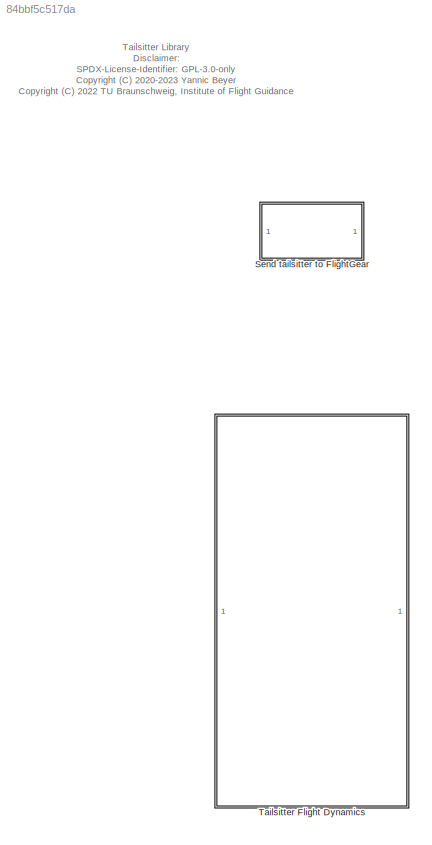
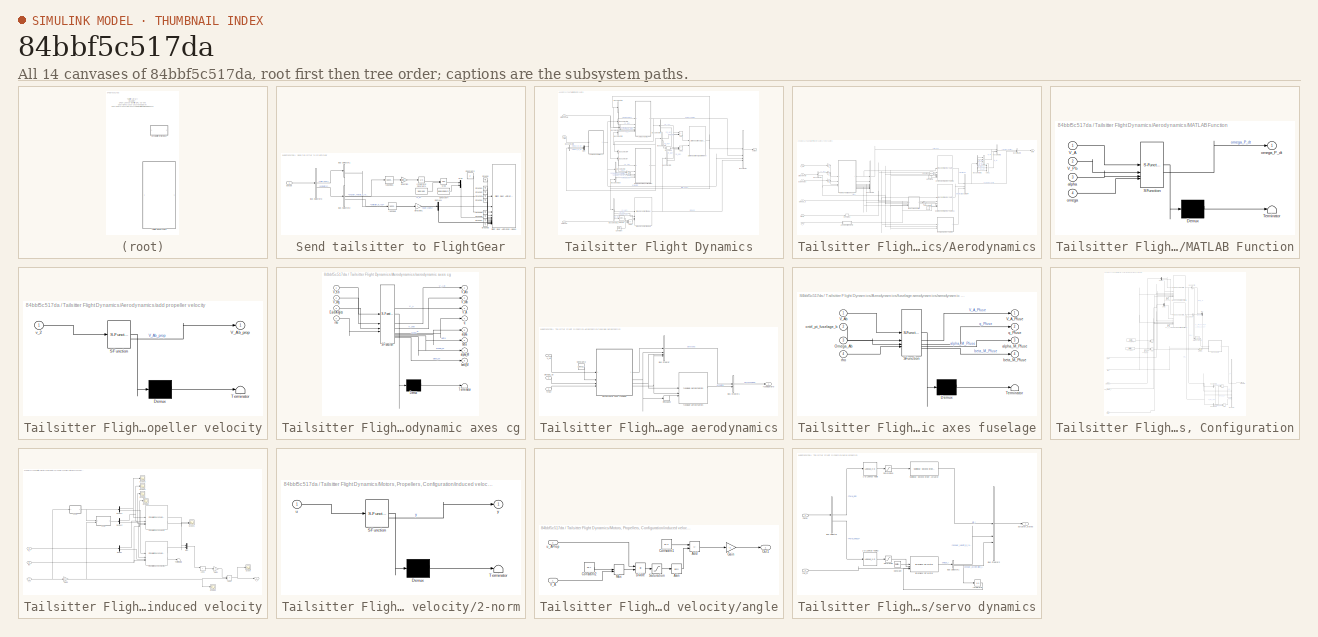
[diagram: thumbnail index - all 14 canvases of the model, root first then tree order]
MODEL slx_84bbf5c517da
KIND library
CONFIG AbsTol = auto
CONFIG EnableMultiTasking = off
CONFIG FixedStep = auto
CONFIG MaxStep = auto
CONFIG MinStep = auto
CONFIG RelTol = 1e-3
CONFIG SampleTimeConstraint = Unconstrained
CONFIG SolverName = VariableStepAuto
CONFIG StartTime = 0.0
CONFIG StopTime = 10.0
BLOCK [SubSystem] Send tailsitter to FlightGear
BLOCK [BusSelector] Send tailsitter to FlightGear/Bus Selector1
  OutputSignals = s_g,EulerAngles
BLOCK [BusSelector] Send tailsitter to FlightGear/Bus Selector2
  OutputSignals = angular_velocity_in_rad_per_s,eta_i.deflection_in_rad
BLOCK [BusSelector] Send tailsitter to FlightGear/Bus Selector3
  OutputSignals = rigid_body,actuators
BLOCK [Constant] Send tailsitter to FlightGear/Constant1
  Value = 360*100
BLOCK [Constant] Send tailsitter to FlightGear/Constant2
  Value = 2
BLOCK [Constant] Send tailsitter to FlightGear/Constant4
  Value = 1000*ones(2,1)
BLOCK [Demux] Send tailsitter to FlightGear/Demux1
  Outputs = 2
BLOCK [Reference] Send tailsitter to FlightGear/Flight Gear Animation (plane)  REF=flightgear_visualization_lib/Flight Gear Animation (plane)  (lib defined in slx_722f04e3a3fc)
  SourceBlock = flightgear_visualization_lib/Flight Gear Animation (plane)
  SourceProductName = LADAC
BLOCK [Ground] Send tailsitter to FlightGear/Ground
BLOCK [Ground] Send tailsitter to FlightGear/Ground1
BLOCK [Ground] Send tailsitter to FlightGear/Ground2
BLOCK [Ground] Send tailsitter to FlightGear/Ground3
BLOCK [Ground] Send tailsitter to FlightGear/Ground4
BLOCK [Ground] Send tailsitter to FlightGear/Ground5
BLOCK [Ground] Send tailsitter to FlightGear/Ground6
BLOCK [Ground] Send tailsitter to FlightGear/Ground7
BLOCK [Ground] Send tailsitter to FlightGear/Ground8
BLOCK [Integrator] Send tailsitter to FlightGear/Integrator
BLOCK [Math] Send tailsitter to FlightGear/Mod
  Operator = mod
  SignedPower = on
BLOCK [Mux] Send tailsitter to FlightGear/Mux
  DisplayOption = bar
  Inputs = 2
BLOCK [Gain] Send tailsitter to FlightGear/direction
  Gain = tailsitter.config.propDir
BLOCK [Gain] Send tailsitter to FlightGear/direction1
  Gain = -1
BLOCK [Inport] Send tailsitter to FlightGear/output
BLOCK [Reference] Send tailsitter to FlightGear/rad2deg  REF=unit_conversions_lib/rad2deg  (lib defined in slx_ae2855d4d91e)
  SourceBlock = unit_conversions_lib/rad2deg
  SourceProductName = LADAC
BLOCK [Reference] Send tailsitter to FlightGear/rad2deg1  REF=unit_conversions_lib/rad2deg  (lib defined in slx_ae2855d4d91e)
  SourceBlock = unit_conversions_lib/rad2deg
  SourceProductName = LADAC
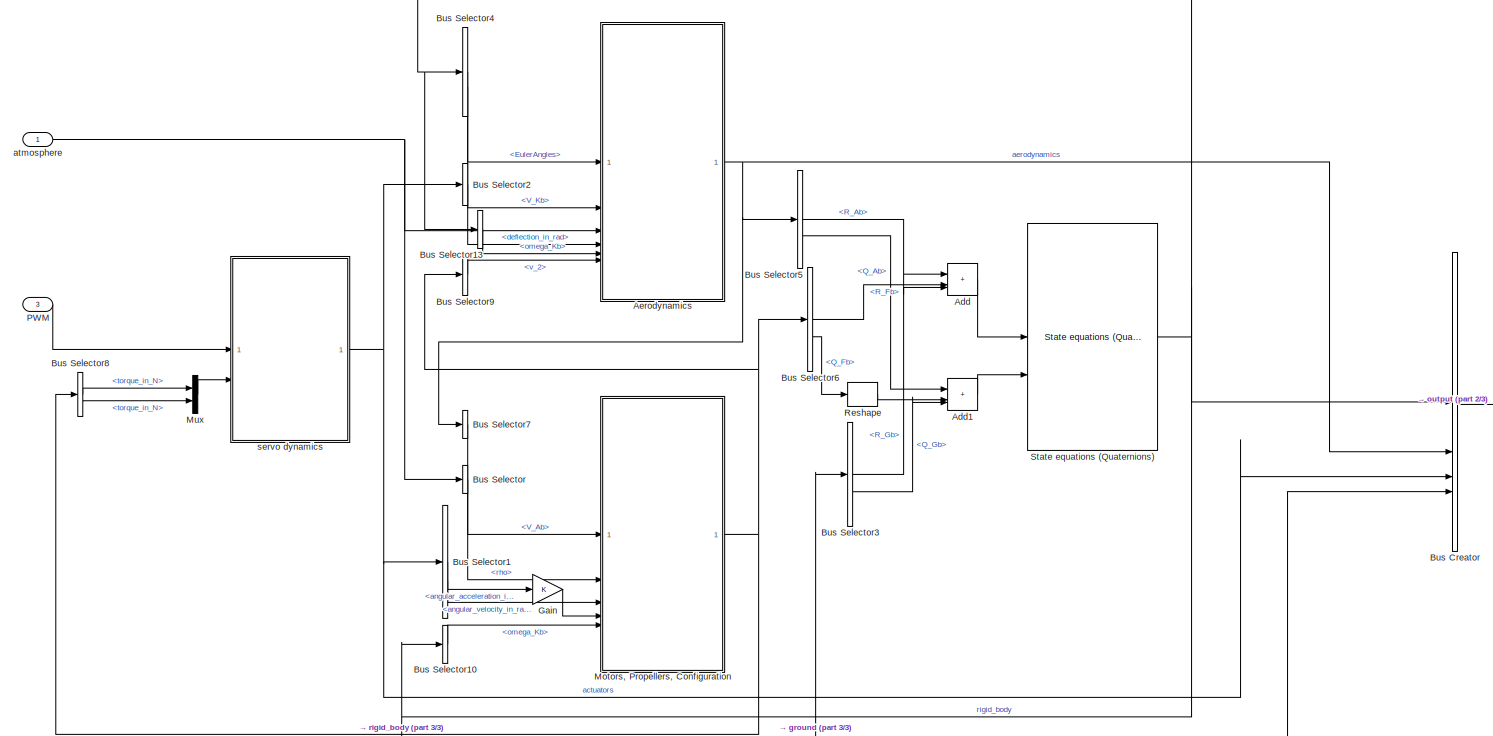
[diagram: Tailsitter Flight Dynamics - part 1/3, full width, middle band]
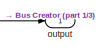
[diagram: Tailsitter Flight Dynamics - part 2/3, middle right region]
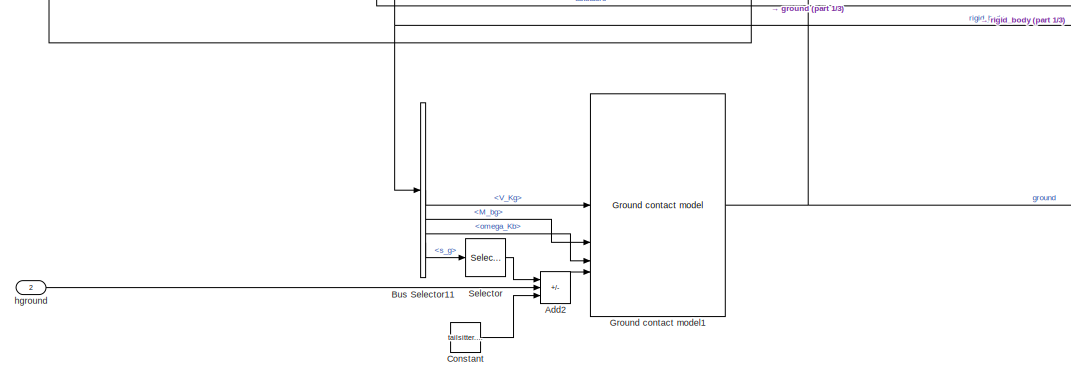
[diagram: Tailsitter Flight Dynamics - part 3/3, bottom center region]
BLOCK [SubSystem] Tailsitter Flight Dynamics
BLOCK [Sum] Tailsitter Flight Dynamics/Add
  IconShape = rectangular
  Inputs = 3
BLOCK [Sum] Tailsitter Flight Dynamics/Add1
  IconShape = rectangular
  Inputs = 3
BLOCK [Sum] Tailsitter Flight Dynamics/Add2
  IconShape = rectangular
  Inputs = --+
BLOCK [SubSystem] Tailsitter Flight Dynamics/Aerodynamics
BLOCK [Gain] Tailsitter Flight Dynamics/Aerodynamics/1
  Gain = [1;1;1]
BLOCK [Gain] Tailsitter Flight Dynamics/Aerodynamics/2
  Gain = [1;1;1]
  OutDataTypeStr = double
BLOCK [Gain] Tailsitter Flight Dynamics/Aerodynamics/3
  Gain = [1;1;1]
BLOCK [Sum] Tailsitter Flight Dynamics/Aerodynamics/Add
  IconShape = rectangular
  Inputs = +++
BLOCK [Sum] Tailsitter Flight Dynamics/Aerodynamics/Add1
  IconShape = rectangular
  Inputs = +++
BLOCK [BusCreator] Tailsitter Flight Dynamics/Aerodynamics/Bus Creator1
  DisplayOption = bar
  InheritFromInputs = on
  Inputs = 8
BLOCK [BusCreator] Tailsitter Flight Dynamics/Aerodynamics/Bus Creator2
  DisplayOption = bar
  InheritFromInputs = on
  Inputs = 3
BLOCK [BusCreator] Tailsitter Flight Dynamics/Aerodynamics/Bus Creator3
  DisplayOption = bar
  InheritFromInputs = on
  Inputs = 2
BLOCK [BusCreator] Tailsitter Flight Dynamics/Aerodynamics/Bus Creator4
  DisplayOption = bar
  InheritFromInputs = on
  Inputs = 3
BLOCK [BusSelector] Tailsitter Flight Dynamics/Aerodynamics/Bus Selector
  OutputSignals = V_Wg,athmosphere.rho
BLOCK [BusSelector] Tailsitter Flight Dynamics/Aerodynamics/Bus Selector2
  OutputSignals = aeroWingDry.dynamicsBody.R_Ab,aeroWingWet.dynamicsBody.R_Ab,aeroFuselage.dynamics.R_Ab,aeroWingDry.dynamicsBody.Q_Ab,aeroWingWet.dynamicsBody.Q_Ab,aeroFuselage.dynamics.Q_Ab
BLOCK [Constant] Tailsitter Flight Dynamics/Aerodynamics/Constant
  Value = zeros(3,2)
BLOCK [Constant] Tailsitter Flight Dynamics/Aerodynamics/Constant1
  Value = 0
BLOCK [Constant] Tailsitter Flight Dynamics/Aerodynamics/Constant2
  Value = 0
BLOCK [Inport] Tailsitter Flight Dynamics/Aerodynamics/EulerAngles 
BLOCK [Gain] Tailsitter Flight Dynamics/Aerodynamics/Gain
  Gain = [0;1;0]
BLOCK [SubSystem] Tailsitter Flight Dynamics/Aerodynamics/MATLAB Function
  ErrorFcn = Stateflow.Translate.translate
  PermitHierarchicalResolution = ExplicitOnly
  SFBlockType = MATLAB Function
  TreatAsAtomicUnit = on
BLOCK [Demux] Tailsitter Flight Dynamics/Aerodynamics/MATLAB Function/ Demux 
  Outputs = 1
BLOCK [S-Function] Tailsitter Flight Dynamics/Aerodynamics/MATLAB Function/ SFunction 
  EnableBusSupport = off
  FunctionName = sf_sfun
  PortCounts = [4 2]
  SFcnIsStateOwnerBlock = off
  SFunctionDeploymentMode = off
  Tag = Stateflow S-Function 32
BLOCK [Terminator] Tailsitter Flight Dynamics/Aerodynamics/MATLAB Function/ Terminator 
BLOCK [Inport] Tailsitter Flight Dynamics/Aerodynamics/MATLAB Function/V_A
BLOCK [Inport] Tailsitter Flight Dynamics/Aerodynamics/MATLAB Function/V_Pb
  Port = 2
BLOCK [Inport] Tailsitter Flight Dynamics/Aerodynamics/MATLAB Function/alpha
  Port = 3
BLOCK [Inport] Tailsitter Flight Dynamics/Aerodynamics/MATLAB Function/omega
  Port = 4
BLOCK [Outport] Tailsitter Flight Dynamics/Aerodynamics/MATLAB Function/omega_P_dt
  VectorParamsAs1DForOutWhenUnconnected = off
BLOCK [Inport] Tailsitter Flight Dynamics/Aerodynamics/Omega_b
  Port = 5
BLOCK [Reshape] Tailsitter Flight Dynamics/Aerodynamics/Reshape
  OutputDimensionality = Row vector (2-D)
BLOCK [Inport] Tailsitter Flight Dynamics/Aerodynamics/V_Kb
  Port = 2
BLOCK [SubSystem] Tailsitter Flight Dynamics/Aerodynamics/add propeller velocity
  ErrorFcn = Stateflow.Translate.translate
  PermitHierarchicalResolution = ExplicitOnly
  SFBlockType = MATLAB Function
  TreatAsAtomicUnit = on
BLOCK [Demux] Tailsitter Flight Dynamics/Aerodynamics/add propeller velocity/ Demux 
  Outputs = 1
BLOCK [S-Function] Tailsitter Flight Dynamics/Aerodynamics/add propeller velocity/ SFunction 
  EnableBusSupport = off
  FunctionName = sf_sfun
  PortCounts = [1 2]
  SFcnIsStateOwnerBlock = off
  SFunctionDeploymentMode = off
  Tag = Stateflow S-Function 12
BLOCK [Terminator] Tailsitter Flight Dynamics/Aerodynamics/add propeller velocity/ Terminator 
BLOCK [Outport] Tailsitter Flight Dynamics/Aerodynamics/add propeller velocity/V_Ab_prop
  VectorParamsAs1DForOutWhenUnconnected = off
BLOCK [Inport] Tailsitter Flight Dynamics/Aerodynamics/add propeller velocity/v_2
BLOCK [Outport] Tailsitter Flight Dynamics/Aerodynamics/aero
  VectorParamsAs1DForOutWhenUnconnected = off
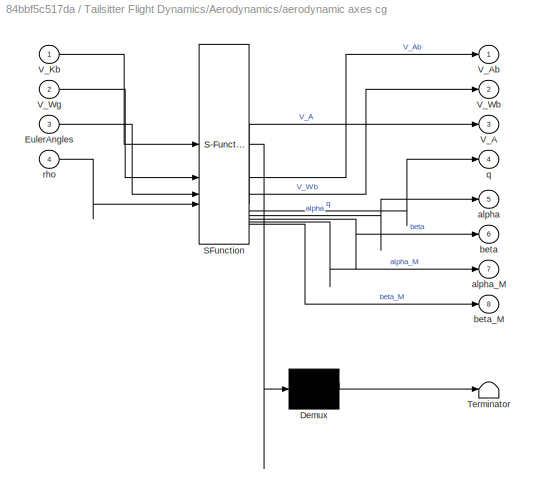
BLOCK [SubSystem] Tailsitter Flight Dynamics/Aerodynamics/aerodynamic axes cg
  ErrorFcn = Stateflow.Translate.translate
  PermitHierarchicalResolution = ExplicitOnly
  SFBlockType = MATLAB Function
  TreatAsAtomicUnit = on
BLOCK [Demux] Tailsitter Flight Dynamics/Aerodynamics/aerodynamic axes cg/ Demux 
  Outputs = 1
BLOCK [S-Function] Tailsitter Flight Dynamics/Aerodynamics/aerodynamic axes cg/ SFunction 
  EnableBusSupport = off
  FunctionName = sf_sfun
  PortCounts = [4 9]
  SFcnIsStateOwnerBlock = off
  SFunctionDeploymentMode = off
  Tag = Stateflow S-Function 4
BLOCK [Terminator] Tailsitter Flight Dynamics/Aerodynamics/aerodynamic axes cg/ Terminator 
BLOCK [Inport] Tailsitter Flight Dynamics/Aerodynamics/aerodynamic axes cg/EulerAngles
  Port = 3
BLOCK [Outport] Tailsitter Flight Dynamics/Aerodynamics/aerodynamic axes cg/V_A
  Port = 3
  VectorParamsAs1DForOutWhenUnconnected = off
BLOCK [Outport] Tailsitter Flight Dynamics/Aerodynamics/aerodynamic axes cg/V_Ab
  VectorParamsAs1DForOutWhenUnconnected = off
BLOCK [Inport] Tailsitter Flight Dynamics/Aerodynamics/aerodynamic axes cg/V_Kb
BLOCK [Outport] Tailsitter Flight Dynamics/Aerodynamics/aerodynamic axes cg/V_Wb
  Port = 2
  VectorParamsAs1DForOutWhenUnconnected = off
BLOCK [Inport] Tailsitter Flight Dynamics/Aerodynamics/aerodynamic axes cg/V_Wg
  Port = 2
BLOCK [Outport] Tailsitter Flight Dynamics/Aerodynamics/aerodynamic axes cg/alpha
  Port = 5
  VectorParamsAs1DForOutWhenUnconnected = off
BLOCK [Outport] Tailsitter Flight Dynamics/Aerodynamics/aerodynamic axes cg/alpha_M
  Port = 7
  VectorParamsAs1DForOutWhenUnconnected = off
BLOCK [Outport] Tailsitter Flight Dynamics/Aerodynamics/aerodynamic axes cg/beta
  Port = 6
  VectorParamsAs1DForOutWhenUnconnected = off
BLOCK [Outport] Tailsitter Flight Dynamics/Aerodynamics/aerodynamic axes cg/beta_M
  Port = 8
  VectorParamsAs1DForOutWhenUnconnected = off
BLOCK [Outport] Tailsitter Flight Dynamics/Aerodynamics/aerodynamic axes cg/q
  Port = 4
  VectorParamsAs1DForOutWhenUnconnected = off
BLOCK [Inport] Tailsitter Flight Dynamics/Aerodynamics/aerodynamic axes cg/rho
  Port = 4
BLOCK [Inport] Tailsitter Flight Dynamics/Aerodynamics/atmosphere
  Port = 3
BLOCK [Reference] Tailsitter Flight Dynamics/Aerodynamics/dry wing 2 point aerodynamics  REF=simple_wing_lib/wing 2 point aerodynamics  (lib defined in slx_d7e68b13d310)
  SourceBlock = simple_wing_lib/wing 2 point aerodynamics
  SourceProductName = LADAC
BLOCK [Inport] Tailsitter Flight Dynamics/Aerodynamics/eta 1 l,r
  Port = 4
BLOCK [SubSystem] Tailsitter Flight Dynamics/Aerodynamics/fuselage aerodynamics
BLOCK [Inport] Tailsitter Flight Dynamics/Aerodynamics/fuselage aerodynamics/<rho>
  Port = 2
BLOCK [BusCreator] Tailsitter Flight Dynamics/Aerodynamics/fuselage aerodynamics/Bus Creator
  DisplayOption = bar
  InheritFromInputs = on
  Inputs = 4
BLOCK [BusCreator] Tailsitter Flight Dynamics/Aerodynamics/fuselage aerodynamics/Bus Creator1
  DisplayOption = bar
  InheritFromInputs = on
  Inputs = 2
BLOCK [Constant] Tailsitter Flight Dynamics/Aerodynamics/fuselage aerodynamics/Constant2
  Value = zeros(3,1)
BLOCK [Inport] Tailsitter Flight Dynamics/Aerodynamics/fuselage aerodynamics/Omega_Ab
  Port = 3
BLOCK [Reshape] Tailsitter Flight Dynamics/Aerodynamics/fuselage aerodynamics/Reshape2
  OutputDimensionality = Row vector (2-D)
BLOCK [Inport] Tailsitter Flight Dynamics/Aerodynamics/fuselage aerodynamics/V_Ab
BLOCK [SubSystem] Tailsitter Flight Dynamics/Aerodynamics/fuselage aerodynamics/aerodynamic axes fuselage
  ErrorFcn = Stateflow.Translate.translate
  PermitHierarchicalResolution = ExplicitOnly
  SFBlockType = MATLAB Function
  TreatAsAtomicUnit = on
BLOCK [Demux] Tailsitter Flight Dynamics/Aerodynamics/fuselage aerodynamics/aerodynamic axes fuselage/ Demux 
  Outputs = 1
BLOCK [S-Function] Tailsitter Flight Dynamics/Aerodynamics/fuselage aerodynamics/aerodynamic axes fuselage/ SFunction 
  EnableBusSupport = off
  FunctionName = sf_sfun
  PortCounts = [4 5]
  SFcnIsStateOwnerBlock = off
  SFunctionDeploymentMode = off
  Tag = Stateflow S-Function 8
BLOCK [Terminator] Tailsitter Flight Dynamics/Aerodynamics/fuselage aerodynamics/aerodynamic axes fuselage/ Terminator 
BLOCK [Inport] Tailsitter Flight Dynamics/Aerodynamics/fuselage aerodynamics/aerodynamic axes fuselage/Omega_Ab
  Port = 3
BLOCK [Outport] Tailsitter Flight Dynamics/Aerodynamics/fuselage aerodynamics/aerodynamic axes fuselage/V_A_Pfuse
  VectorParamsAs1DForOutWhenUnconnected = off
BLOCK [Inport] Tailsitter Flight Dynamics/Aerodynamics/fuselage aerodynamics/aerodynamic axes fuselage/V_Ab
BLOCK [Outport] Tailsitter Flight Dynamics/Aerodynamics/fuselage aerodynamics/aerodynamic axes fuselage/alpha_M_Pfuse
  Port = 3
  VectorParamsAs1DForOutWhenUnconnected = off
BLOCK [Outport] Tailsitter Flight Dynamics/Aerodynamics/fuselage aerodynamics/aerodynamic axes fuselage/beta_M_Pfuse
  Port = 4
  VectorParamsAs1DForOutWhenUnconnected = off
BLOCK [Inport] Tailsitter Flight Dynamics/Aerodynamics/fuselage aerodynamics/aerodynamic axes fuselage/cntrl_pt_fuselage_b
  Port = 2
BLOCK [Outport] Tailsitter Flight Dynamics/Aerodynamics/fuselage aerodynamics/aerodynamic axes fuselage/q_Pfuse
  Port = 2
  VectorParamsAs1DForOutWhenUnconnected = off
BLOCK [Inport] Tailsitter Flight Dynamics/Aerodynamics/fuselage aerodynamics/aerodynamic axes fuselage/rho
  Port = 4
BLOCK [Reference] Tailsitter Flight Dynamics/Aerodynamics/fuselage aerodynamics/fuselage aerodynamics  REF=simpleFuselage_lib/fuselage aerodynamics
  SourceBlock = simpleFuselage_lib/fuselage aerodynamics
  SourceProductName = LADAC
BLOCK [Outport] Tailsitter Flight Dynamics/Aerodynamics/fuselage aerodynamics/fuselageAero
  VectorParamsAs1DForOutWhenUnconnected = off
BLOCK [Inport] Tailsitter Flight Dynamics/Aerodynamics/v_2
  Port = 6
BLOCK [Reference] Tailsitter Flight Dynamics/Aerodynamics/wet wing 2 point aerodynamics1  REF=simple_wing_lib/wing 2 point aerodynamics  (lib defined in slx_d7e68b13d310)
  SourceBlock = simple_wing_lib/wing 2 point aerodynamics
  SourceProductName = LADAC
BLOCK [BusCreator] Tailsitter Flight Dynamics/Bus Creator
  DisplayOption = bar
  InheritFromInputs = on
  Inputs = 4
BLOCK [BusSelector] Tailsitter Flight Dynamics/Bus Selector
  OutputSignals = athmosphere.rho
BLOCK [BusSelector] Tailsitter Flight Dynamics/Bus Selector1
  OutputSignals = angular_velocity_in_rad_per_s,angular_acceleration_in_rad_per_square_s
BLOCK [BusSelector] Tailsitter Flight Dynamics/Bus Selector10
  OutputSignals = omega_Kb
BLOCK [BusSelector] Tailsitter Flight Dynamics/Bus Selector11
  OutputSignals = V_Kg,M_bg,omega_Kb,s_g
BLOCK [BusSelector] Tailsitter Flight Dynamics/Bus Selector13
  OutputSignals = omega_Kb
BLOCK [BusSelector] Tailsitter Flight Dynamics/Bus Selector2
  OutputSignals = eta_i.deflection_in_rad
BLOCK [BusSelector] Tailsitter Flight Dynamics/Bus Selector3
  OutputSignals = forces_and_moments.R_Gb,forces_and_moments.Q_Gb
BLOCK [BusSelector] Tailsitter Flight Dynamics/Bus Selector4
  OutputSignals = EulerAngles,V_Kb
BLOCK [BusSelector] Tailsitter Flight Dynamics/Bus Selector5
  OutputSignals = cg aerodynamics.R_Ab,cg aerodynamics.Q_Ab
BLOCK [BusSelector] Tailsitter Flight Dynamics/Bus Selector6
  OutputSignals = R_Fb,Q_Fb
BLOCK [BusSelector] Tailsitter Flight Dynamics/Bus Selector7
  OutputSignals = cg aerodynamics.aeroAxes.V_Ab
BLOCK [BusSelector] Tailsitter Flight Dynamics/Bus Selector8
  OutputSignals = prop_1.torque_in_N,prop_2.torque_in_N
BLOCK [BusSelector] Tailsitter Flight Dynamics/Bus Selector9
  OutputSignals = v_2
BLOCK [Constant] Tailsitter Flight Dynamics/Constant
  Value = tailsitter.posRef.alt
BLOCK [Gain] Tailsitter Flight Dynamics/Gain
BLOCK [Reference] Tailsitter Flight Dynamics/Ground contact model1  REF=ground_lib/Ground contact model  (lib defined in slx_83645a88b0f4)
  SourceBlock = ground_lib/Ground contact model
  SourceProductName = LADAC
BLOCK [SubSystem] Tailsitter Flight Dynamics/Motors, Propellers, Configuration
BLOCK [Sum] Tailsitter Flight Dynamics/Motors, Propellers, Configuration/Add
  IconShape = rectangular
BLOCK [Sum] Tailsitter Flight Dynamics/Motors, Propellers, Configuration/Add1
  IconShape = rectangular
  Inputs = +-
BLOCK [Sum] Tailsitter Flight Dynamics/Motors, Propellers, Configuration/Add2
  IconShape = rectangular
  Inputs = +-
BLOCK [Sum] Tailsitter Flight Dynamics/Motors, Propellers, Configuration/Add3
  IconShape = rectangular
BLOCK [BusCreator] Tailsitter Flight Dynamics/Motors, Propellers, Configuration/Bus Creator
  DisplayOption = bar
  InheritFromInputs = on
  Inputs = 5
BLOCK [BusSelector] Tailsitter Flight Dynamics/Motors, Propellers, Configuration/Bus Selector
  OutputSignals = thrust_in_N,V_A_prop_in_m_per_s
BLOCK [BusSelector] Tailsitter Flight Dynamics/Motors, Propellers, Configuration/Bus Selector1
  OutputSignals = thrust_in_N,V_A_prop_in_m_per_s
BLOCK [BusSelector] Tailsitter Flight Dynamics/Motors, Propellers, Configuration/Bus Selector2
  OutputSignals = R_Fb_in_N,Q_Fb_in_Nm
BLOCK [BusSelector] Tailsitter Flight Dynamics/Motors, Propellers, Configuration/Bus Selector3
  OutputSignals = R_Fb_in_N,Q_Fb_in_Nm
BLOCK [Demux] Tailsitter Flight Dynamics/Motors, Propellers, Configuration/Demux
  Outputs = 2
BLOCK [Demux] Tailsitter Flight Dynamics/Motors, Propellers, Configuration/Demux1
  Outputs = 2
BLOCK [Reference] Tailsitter Flight Dynamics/Motors, Propellers, Configuration/Map-based propeller fixed to airframe  REF=propulsion_lib/Map-based propeller fixed to airframe  (lib defined in slx_12561ba25cc8)
  SourceBlock = propulsion_lib/Map-based propeller fixed to airframe
  SourceProductName = LADAC
BLOCK [Reference] Tailsitter Flight Dynamics/Motors, Propellers, Configuration/Map-based propeller fixed to airframe1  REF=propulsion_lib/Map-based propeller fixed to airframe  (lib defined in slx_12561ba25cc8)
  SourceBlock = propulsion_lib/Map-based propeller fixed to airframe
  SourceProductName = LADAC
BLOCK [Concatenate] Tailsitter Flight Dynamics/Motors, Propellers, Configuration/Matrix Concatenate
  ConcatenateDimension = 2
  Mode = Multidimensional array
BLOCK [Mux] Tailsitter Flight Dynamics/Motors, Propellers, Configuration/Mux
  DisplayOption = bar
  Inputs = 2
BLOCK [Inport] Tailsitter Flight Dynamics/Motors, Propellers, Configuration/Rates 
  Port = 5
BLOCK [Scope] Tailsitter Flight Dynamics/Motors, Propellers, Configuration/Scope2
  Floating = off
  NumInputPorts = 1
  ScopeSpecificationString = Simulink.scopes.TimeScopeBlockCfg('CurrentConfiguration', extmgr.ConfigurationSet(extmgr.Configuration('Core','General UI',true),extmgr.Configuration('Core','Source UI',true),extmgr.Configuration('Sources','WiredSimulink',true,'DataLoggingVariableName','ScopeData2'),extmgr.Configuration('Visuals','Time Domain',true,'SerializedDisplays',{struct('MinYLimReal','-0.20625','MaxYLimReal','0.20625','YLab...<+1823ch>
BLOCK [Inport] Tailsitter Flight Dynamics/Motors, Propellers, Configuration/V_Ab
BLOCK [Inport] Tailsitter Flight Dynamics/Motors, Propellers, Configuration/dot_omega_i
  Port = 4
BLOCK [SubSystem] Tailsitter Flight Dynamics/Motors, Propellers, Configuration/induced velocity
BLOCK [SubSystem] Tailsitter Flight Dynamics/Motors, Propellers, Configuration/induced velocity/2-norm
  ErrorFcn = Stateflow.Translate.translate
  PermitHierarchicalResolution = ExplicitOnly
  SFBlockType = MATLAB Function
  TreatAsAtomicUnit = on
BLOCK [Demux] Tailsitter Flight Dynamics/Motors, Propellers, Configuration/induced velocity/2-norm/ Demux 
  Outputs = 1
BLOCK [S-Function] Tailsitter Flight Dynamics/Motors, Propellers, Configuration/induced velocity/2-norm/ SFunction 
  EnableBusSupport = off
  FunctionName = sf_sfun
  PortCounts = [1 2]
  SFcnIsStateOwnerBlock = off
  SFunctionDeploymentMode = off
  Tag = Stateflow S-Function 2
BLOCK [Terminator] Tailsitter Flight Dynamics/Motors, Propellers, Configuration/induced velocity/2-norm/ Terminator 
BLOCK [Inport] Tailsitter Flight Dynamics/Motors, Propellers, Configuration/induced velocity/2-norm/u
BLOCK [Outport] Tailsitter Flight Dynamics/Motors, Propellers, Configuration/induced velocity/2-norm/y
  VectorParamsAs1DForOutWhenUnconnected = off
BLOCK [Sum] Tailsitter Flight Dynamics/Motors, Propellers, Configuration/induced velocity/Add1
  IconShape = rectangular
BLOCK [Sum] Tailsitter Flight Dynamics/Motors, Propellers, Configuration/induced velocity/Add2
  IconShape = rectangular
BLOCK [Demux] Tailsitter Flight Dynamics/Motors, Propellers, Configuration/induced velocity/Demux
  Outputs = 2
BLOCK [Demux] Tailsitter Flight Dynamics/Motors, Propellers, Configuration/induced velocity/Demux1
  Outputs = 2
BLOCK [Demux] Tailsitter Flight Dynamics/Motors, Propellers, Configuration/induced velocity/Demux2
  Outputs = 2
BLOCK [Gain] Tailsitter Flight Dynamics/Motors, Propellers, Configuration/induced velocity/Gain1
  Gain = 2
BLOCK [Gain] Tailsitter Flight Dynamics/Motors, Propellers, Configuration/induced velocity/Gain3
  Gain = [1 0 0]
  Multiplication = Matrix(K*u)
BLOCK [Mux] Tailsitter Flight Dynamics/Motors, Propellers, Configuration/induced velocity/Mux
  DisplayOption = bar
  Inputs = 2
BLOCK [Reference] Tailsitter Flight Dynamics/Motors, Propellers, Configuration/induced velocity/Propeller Induced Velocity  REF=rotorcraft_lib/Propeller Induced Velocity  (lib defined in slx_32347e601571)
  SourceBlock = rotorcraft_lib/Propeller Induced Velocity
  SourceProductName = LADAC
BLOCK [Reference] Tailsitter Flight Dynamics/Motors, Propellers, Configuration/induced velocity/Propeller Induced Velocity1  REF=rotorcraft_lib/Propeller Induced Velocity  (lib defined in slx_32347e601571)
  SourceBlock = rotorcraft_lib/Propeller Induced Velocity
  SourceProductName = LADAC
BLOCK [Scope] Tailsitter Flight Dynamics/Motors, Propellers, Configuration/induced velocity/Scope
  Floating = off
  NumInputPorts = 1
  ScopeSpecificationString = Simulink.scopes.TimeScopeBlockCfg('CurrentConfiguration', extmgr.ConfigurationSet(extmgr.Configuration('Core','General UI',true),extmgr.Configuration('Core','Source UI',true),extmgr.Configuration('Sources','WiredSimulink',true,'DataLoggingVariableName','ScopeData1'),extmgr.Configuration('Visuals','Time Domain',true,'SerializedDisplays',{struct('MinYLimReal','-5.92274','MaxYLimReal','27.66684','YLa...<+1488ch>
BLOCK [Scope] Tailsitter Flight Dynamics/Motors, Propellers, Configuration/induced velocity/Scope1
  Floating = off
  NumInputPorts = 2
  ScopeSpecificationString = Simulink.scopes.TimeScopeBlockCfg('CurrentConfiguration', extmgr.ConfigurationSet(extmgr.Configuration('Core','General UI',true),extmgr.Configuration('Core','Source UI',true),extmgr.Configuration('Sources','WiredSimulink',true,'DataLoggingVariableName','ScopeData1'),extmgr.Configuration('Visuals','Time Domain',true,'SerializedDisplays',{struct('MinYLimReal','-1.51557','MaxYLimReal','13.64016','YLa...<+1536ch>
BLOCK [Scope] Tailsitter Flight Dynamics/Motors, Propellers, Configuration/induced velocity/Scope2
  Floating = off
  NumInputPorts = 1
  ScopeSpecificationString = Simulink.scopes.TimeScopeBlockCfg('CurrentConfiguration', extmgr.ConfigurationSet(extmgr.Configuration('Core','General UI',true),extmgr.Configuration('Core','Source UI',true),extmgr.Configuration('Sources','WiredSimulink',true,'DataLoggingVariableName','ScopeData2'),extmgr.Configuration('Visuals','Time Domain',true,'SerializedDisplays',{struct('MinYLimReal','-6.4238','MaxYLimReal','7.7336','YLabel...<+1450ch>
BLOCK [Scope] Tailsitter Flight Dynamics/Motors, Propellers, Configuration/induced velocity/Scope3
  Floating = off
  NumInputPorts = 1
  ScopeSpecificationString = Simulink.scopes.TimeScopeBlockCfg('CurrentConfiguration', extmgr.ConfigurationSet(extmgr.Configuration('Core','General UI',true),extmgr.Configuration('Core','Source UI',true),extmgr.Configuration('Sources','WiredSimulink',true,'DataLoggingVariableName','ScopeData3'),extmgr.Configuration('Visuals','Time Domain',true,'SerializedDisplays',{struct('MinYLimReal','-2.76877','MaxYLimReal','25.06026','YLa...<+1464ch>
BLOCK [Scope] Tailsitter Flight Dynamics/Motors, Propellers, Configuration/induced velocity/Scope4
  Floating = off
  NumInputPorts = 1
  ScopeSpecificationString = Simulink.scopes.TimeScopeBlockCfg('CurrentConfiguration', extmgr.ConfigurationSet(extmgr.Configuration('Core','General UI',true),extmgr.Configuration('Core','Source UI',true),extmgr.Configuration('Sources','WiredSimulink',true,'DataLoggingVariableName','ScopeData4'),extmgr.Configuration('Visuals','Time Domain',true,'SerializedDisplays',{struct('MinYLimReal','-2.56058','MaxYLimReal','-0.554','YLabe...<+1458ch>
BLOCK [Scope] Tailsitter Flight Dynamics/Motors, Propellers, Configuration/induced velocity/Scope5
  Floating = off
  NumInputPorts = 1
  ScopeSpecificationString = Simulink.scopes.TimeScopeBlockCfg('CurrentConfiguration', extmgr.ConfigurationSet(extmgr.Configuration('Core','General UI',true),extmgr.Configuration('Core','Source UI',true),extmgr.Configuration('Sources','WiredSimulink',true,'DataLoggingVariableName','ScopeData5'),extmgr.Configuration('Visuals','Time Domain',true),extmgr.Configuration('Tools','Plot Navigation',true),extmgr.Configuration('Tools',...<+40ch>
BLOCK [Scope] Tailsitter Flight Dynamics/Motors, Propellers, Configuration/induced velocity/Scope6
  Floating = off
  NumInputPorts = 1
  ScopeSpecificationString = Simulink.scopes.TimeScopeBlockCfg('CurrentConfiguration', extmgr.ConfigurationSet(extmgr.Configuration('Core','General UI',true),extmgr.Configuration('Core','Source UI',true),extmgr.Configuration('Sources','WiredSimulink',true,'DataLoggingVariableName','ScopeData6'),extmgr.Configuration('Visuals','Time Domain',true),extmgr.Configuration('Tools','Plot Navigation',true),extmgr.Configuration('Tools',...<+40ch>
BLOCK [Inport] Tailsitter Flight Dynamics/Motors, Propellers, Configuration/induced velocity/T_i
  Port = 3
BLOCK [Terminator] Tailsitter Flight Dynamics/Motors, Propellers, Configuration/induced velocity/Terminator2
BLOCK [Inport] Tailsitter Flight Dynamics/Motors, Propellers, Configuration/induced velocity/V_A
BLOCK [SubSystem] Tailsitter Flight Dynamics/Motors, Propellers, Configuration/induced velocity/angle
BLOCK [Sum] Tailsitter Flight Dynamics/Motors, Propellers, Configuration/induced velocity/angle/Add
  IconShape = rectangular
  Inputs = +-
BLOCK [Trigonometry] Tailsitter Flight Dynamics/Motors, Propellers, Configuration/induced velocity/angle/Asin
  Operator = asin
  OutputSignalType = real
BLOCK [Constant] Tailsitter Flight Dynamics/Motors, Propellers, Configuration/induced velocity/angle/Constant1
  Value = pi/2
BLOCK [Constant] Tailsitter Flight Dynamics/Motors, Propellers, Configuration/induced velocity/angle/Constant2
  Value = 1e-7
BLOCK [Product] Tailsitter Flight Dynamics/Motors, Propellers, Configuration/induced velocity/angle/Divide
  Inputs = */
BLOCK [Gain] Tailsitter Flight Dynamics/Motors, Propellers, Configuration/induced velocity/angle/Gain
  Gain = -1
BLOCK [MinMax] Tailsitter Flight Dynamics/Motors, Propellers, Configuration/induced velocity/angle/Max
  Function = max
  Inputs = 2
BLOCK [Outport] Tailsitter Flight Dynamics/Motors, Propellers, Configuration/induced velocity/angle/Out1
  VectorParamsAs1DForOutWhenUnconnected = off
BLOCK [Saturate] Tailsitter Flight Dynamics/Motors, Propellers, Configuration/induced velocity/angle/Saturation
  LowerLimit = -0.99
  UpperLimit = 0.99
BLOCK [Inport] Tailsitter Flight Dynamics/Motors, Propellers, Configuration/induced velocity/angle/V_A
BLOCK [Inport] Tailsitter Flight Dynamics/Motors, Propellers, Configuration/induced velocity/angle/u_AProp
  Port = 2
BLOCK [Inport] Tailsitter Flight Dynamics/Motors, Propellers, Configuration/induced velocity/rho
  Port = 2
BLOCK [Outport] Tailsitter Flight Dynamics/Motors, Propellers, Configuration/induced velocity/v_2
  VectorParamsAs1DForOutWhenUnconnected = off
BLOCK [Inport] Tailsitter Flight Dynamics/Motors, Propellers, Configuration/omega_i 
  Port = 3
BLOCK [Outport] Tailsitter Flight Dynamics/Motors, Propellers, Configuration/propulsion
  VectorParamsAs1DForOutWhenUnconnected = off
BLOCK [Inport] Tailsitter Flight Dynamics/Motors, Propellers, Configuration/rho
  Port = 2
BLOCK [Constant] Tailsitter Flight Dynamics/Motors, Propellers, Configuration/xyz_c_cg
  Value = tailsitter.config.CoG_Pos_c
BLOCK [Constant] Tailsitter Flight Dynamics/Motors, Propellers, Configuration/xyz_c_cg1
  Value = tailsitter.config.M_b_prop1
BLOCK [Constant] Tailsitter Flight Dynamics/Motors, Propellers, Configuration/xyz_c_cg2
  Value = tailsitter.config.M_b_prop2
BLOCK [Constant] Tailsitter Flight Dynamics/Motors, Propellers, Configuration/xyz_mi_M_i
  Value = tailsitter.config.propPos_c(:,1)
BLOCK [Constant] Tailsitter Flight Dynamics/Motors, Propellers, Configuration/xyz_mi_M_i1
  Value = tailsitter.config.propPos_c(:,2)
BLOCK [Mux] Tailsitter Flight Dynamics/Mux
  DisplayOption = bar
  Inputs = 2
BLOCK [Inport] Tailsitter Flight Dynamics/PWM
  Port = 3
BLOCK [Reshape] Tailsitter Flight Dynamics/Reshape
  OutputDimensionality = Column vector (2-D)
BLOCK [Selector] Tailsitter Flight Dynamics/Selector
  IndexOptions = Index vector (dialog)
  Indices = 3
  InputPortWidth = 3
  OutputSizes = 1
BLOCK [Reference] Tailsitter Flight Dynamics/State equations (Quaternions)  REF=rigidBody_lib/State equations
(Quaternions)
  SourceBlock = rigidBody_lib/State equations\n(Quaternions)
  SourceProductName = LADAC
BLOCK [Inport] Tailsitter Flight Dynamics/atmosphere
BLOCK [Inport] Tailsitter Flight Dynamics/hground
  Port = 2
BLOCK [Outport] Tailsitter Flight Dynamics/output
  VectorParamsAs1DForOutWhenUnconnected = off
BLOCK [SubSystem] Tailsitter Flight Dynamics/servo dynamics
BLOCK [Lookup_n-D] Tailsitter Flight Dynamics/servo dynamics/1-D Lookup Table
  BreakpointsForDimension1 = [1100;1900]
  InputPortMap = u0
  InternalRulePriority = Speed
  NumberOfTableDimensions = 1
  RndMeth = Simplest
  Table = [tailsitter.act.elevons.deflectionMin;tailsitter.act.elevons.deflectionMax]
BLOCK [Lookup_n-D] Tailsitter Flight Dynamics/servo dynamics/1-D Lookup Table2
  BreakpointsForDimension1 = [1000;2000]
  InputPortMap = u0
  InternalRulePriority = Speed
  NumberOfTableDimensions = 1
  RndMeth = Simplest
  Table = [0;1]
BLOCK [Reference] Tailsitter Flight Dynamics/servo dynamics/Brushless DC Motor  REF=actuators_lib/Brushless DC Motor  (lib defined in slx_c2decc952d1f)
  SourceBlock = actuators_lib/Brushless DC Motor
  SourceProductName = LADAC
BLOCK [BusCreator] Tailsitter Flight Dynamics/servo dynamics/Bus Creator2
  DisplayOption = bar
  InheritFromInputs = on
  Inputs = 3
BLOCK [BusSelector] Tailsitter Flight Dynamics/servo dynamics/Bus Selector
  OutputSignals = PWM_eta,PWM_omega
BLOCK [BusSelector] Tailsitter Flight Dynamics/servo dynamics/Bus Selector1
  OutputSignals = angular_velocity_in_rad_per_s,angular_acceleration_in_rad_per_square_s
BLOCK [Constant] Tailsitter Flight Dynamics/servo dynamics/Constant
  Value = tailsitter.bat.V
BLOCK [Integrator] Tailsitter Flight Dynamics/servo dynamics/Integrator
  InitialCondition = tailsitter.ic.motor_speed
BLOCK [Reference] Tailsitter Flight Dynamics/servo dynamics/Nonlinear Second-Order Actuator  REF=actuators_lib/Nonlinear Second-Order Actuator  (lib defined in slx_c2decc952d1f)
  SourceBlock = actuators_lib/Nonlinear Second-Order Actuator
  SourceProductName = LADAC
BLOCK [Inport] Tailsitter Flight Dynamics/servo dynamics/PWM
BLOCK [Saturate] Tailsitter Flight Dynamics/servo dynamics/Saturation
  LowerLimit = 0
  UpperLimit = 1
BLOCK [Saturate] Tailsitter Flight Dynamics/servo dynamics/Saturation1
  LowerLimit = tailsitter.act.elevons.deflectionMin
  UpperLimit = tailsitter.act.elevons.deflectionMax
BLOCK [Outport] Tailsitter Flight Dynamics/servo dynamics/actuator_states
  VectorParamsAs1DForOutWhenUnconnected = off
BLOCK [Inport] Tailsitter Flight Dynamics/servo dynamics/tau_Fi
  Port = 2
ANNOTATION (root): Tailsitter Library Disclaimer: SPDX-License-Identifier: GPL-3.0-only <copyright redacted>
LINE Send tailsitter to FlightGear/Bus Selector1:1 -> Send tailsitter to FlightGear/Flight Gear Animation (plane):1
LINE Send tailsitter to FlightGear/Bus Selector1:2 -> Send tailsitter to FlightGear/Flight Gear Animation (plane):2
LINE Send tailsitter to FlightGear/Bus Selector2:1 -> Send tailsitter to FlightGear/rad2deg1:1
LINE Send tailsitter to FlightGear/Bus Selector2:2 -> Send tailsitter to FlightGear/rad2deg:1
LINE Send tailsitter to FlightGear/Bus Selector3:1 -> Send tailsitter to FlightGear/Bus Selector1:1
LINE Send tailsitter to FlightGear/Bus Selector3:2 -> Send tailsitter to FlightGear/Bus Selector2:1
LINE Send tailsitter to FlightGear/Constant1:1 -> Send tailsitter to FlightGear/Mod:2
LINE Send tailsitter to FlightGear/Constant2:1 -> Send tailsitter to FlightGear/Flight Gear Animation (plane):3
LINE Send tailsitter to FlightGear/Constant4:1 -> Send tailsitter to FlightGear/Mux:2
LINE Send tailsitter to FlightGear/Demux1:1 -> Send tailsitter to FlightGear/Flight Gear Animation (plane):10
LINE Send tailsitter to FlightGear/Demux1:2 -> Send tailsitter to FlightGear/Flight Gear Animation (plane):11
LINE Send tailsitter to FlightGear/Ground1:1 -> Send tailsitter to FlightGear/Flight Gear Animation (plane):6
LINE Send tailsitter to FlightGear/Ground2:1 -> Send tailsitter to FlightGear/Flight Gear Animation (plane):7
LINE Send tailsitter to FlightGear/Ground3:1 -> Send tailsitter to FlightGear/Flight Gear Animation (plane):8
LINE Send tailsitter to FlightGear/Ground4:1 -> Send tailsitter to FlightGear/Flight Gear Animation (plane):9
LINE Send tailsitter to FlightGear/Ground5:1 -> Send tailsitter to FlightGear/Flight Gear Animation (plane):12
LINE Send tailsitter to FlightGear/Ground6:1 -> Send tailsitter to FlightGear/Flight Gear Animation (plane):13
LINE Send tailsitter to FlightGear/Ground7:1 -> Send tailsitter to FlightGear/Flight Gear Animation (plane):14
LINE Send tailsitter to FlightGear/Ground8:1 -> Send tailsitter to FlightGear/Flight Gear Animation (plane):15
LINE Send tailsitter to FlightGear/Ground:1 -> Send tailsitter to FlightGear/Flight Gear Animation (plane):4
LINE Send tailsitter to FlightGear/Integrator:1 -> Send tailsitter to FlightGear/Mod:1
LINE Send tailsitter to FlightGear/Mod:1 -> Send tailsitter to FlightGear/Mux:1
LINE Send tailsitter to FlightGear/Mux:1 -> Send tailsitter to FlightGear/Flight Gear Animation (plane):5
LINE Send tailsitter to FlightGear/direction1:1 -> Send tailsitter to FlightGear/Demux1:1
LINE Send tailsitter to FlightGear/direction:1 -> Send tailsitter to FlightGear/Integrator:1
LINE Send tailsitter to FlightGear/output:1 -> Send tailsitter to FlightGear/Bus Selector3:1
LINE Send tailsitter to FlightGear/rad2deg1:1 -> Send tailsitter to FlightGear/direction:1
LINE Send tailsitter to FlightGear/rad2deg:1 -> Send tailsitter to FlightGear/direction1:1
LINE Tailsitter Flight Dynamics/Add1:1 -> Tailsitter Flight Dynamics/State equations (Quaternions):2
LINE Tailsitter Flight Dynamics/Add2:1 -> Tailsitter Flight Dynamics/Ground contact model1:4
LINE Tailsitter Flight Dynamics/Add:1 -> Tailsitter Flight Dynamics/State equations (Quaternions):1
LINE Tailsitter Flight Dynamics/Aerodynamics/1:1 -> Tailsitter Flight Dynamics/Aerodynamics/aerodynamic axes cg:1
LINE Tailsitter Flight Dynamics/Aerodynamics/2:1 -> Tailsitter Flight Dynamics/Aerodynamics/aerodynamic axes cg:2
LINE Tailsitter Flight Dynamics/Aerodynamics/3:1 -> Tailsitter Flight Dynamics/Aerodynamics/aerodynamic axes cg:3
LINE Tailsitter Flight Dynamics/Aerodynamics/Add1:1 -> Tailsitter Flight Dynamics/Aerodynamics/Bus Creator2:3
LINE Tailsitter Flight Dynamics/Aerodynamics/Add:1 -> Tailsitter Flight Dynamics/Aerodynamics/Bus Creator2:2
LINE Tailsitter Flight Dynamics/Aerodynamics/Bus Creator1:1 -> Tailsitter Flight Dynamics/Aerodynamics/Bus Creator2:1
LINE Tailsitter Flight Dynamics/Aerodynamics/Bus Creator2:1 -> Tailsitter Flight Dynamics/Aerodynamics/Bus Creator3:1
LINE Tailsitter Flight Dynamics/Aerodynamics/Bus Creator3:1 -> Tailsitter Flight Dynamics/Aerodynamics/aero:1
NET Tailsitter Flight Dynamics/Aerodynamics/Bus Creator4:1 -> Tailsitter Flight Dynamics/Aerodynamics/Bus Creator3:2, Tailsitter Flight Dynamics/Aerodynamics/Bus Selector2:1
LINE Tailsitter Flight Dynamics/Aerodynamics/Bus Selector2:1 -> Tailsitter Flight Dynamics/Aerodynamics/Add:1
LINE Tailsitter Flight Dynamics/Aerodynamics/Bus Selector2:2 -> Tailsitter Flight Dynamics/Aerodynamics/Add:2
LINE Tailsitter Flight Dynamics/Aerodynamics/Bus Selector2:3 -> Tailsitter Flight Dynamics/Aerodynamics/Add:3
LINE Tailsitter Flight Dynamics/Aerodynamics/Bus Selector2:4 -> Tailsitter Flight Dynamics/Aerodynamics/Add1:1
LINE Tailsitter Flight Dynamics/Aerodynamics/Bus Selector2:5 -> Tailsitter Flight Dynamics/Aerodynamics/Add1:2
LINE Tailsitter Flight Dynamics/Aerodynamics/Bus Selector2:6 -> Tailsitter Flight Dynamics/Aerodynamics/Add1:3
LINE Tailsitter Flight Dynamics/Aerodynamics/Bus Selector:1 -> Tailsitter Flight Dynamics/Aerodynamics/2:1
NET Tailsitter Flight Dynamics/Aerodynamics/Bus Selector:2 -> Tailsitter Flight Dynamics/Aerodynamics/aerodynamic axes cg:4, Tailsitter Flight Dynamics/Aerodynamics/dry wing 2 point aerodynamics:3, Tailsitter Flight Dynamics/Aerodynamics/fuselage aerodynamics:2, Tailsitter Flight Dynamics/Aerodynamics/wet wing 2 point aerodynamics1:3
LINE Tailsitter Flight Dynamics/Aerodynamics/Constant1:1 -> Tailsitter Flight Dynamics/Aerodynamics/dry wing 2 point aerodynamics:6
LINE Tailsitter Flight Dynamics/Aerodynamics/Constant2:1 -> Tailsitter Flight Dynamics/Aerodynamics/wet wing 2 point aerodynamics1:6
LINE Tailsitter Flight Dynamics/Aerodynamics/Constant:1 -> Tailsitter Flight Dynamics/Aerodynamics/dry wing 2 point aerodynamics:5
LINE Tailsitter Flight Dynamics/Aerodynamics/EulerAngles :1 -> Tailsitter Flight Dynamics/Aerodynamics/3:1
LINE Tailsitter Flight Dynamics/Aerodynamics/Gain:1 -> Tailsitter Flight Dynamics/Aerodynamics/wet wing 2 point aerodynamics1:4
LINE Tailsitter Flight Dynamics/Aerodynamics/MATLAB Function:1 -> Tailsitter Flight Dynamics/Aerodynamics/Gain:1
NET Tailsitter Flight Dynamics/Aerodynamics/Omega_b:1 -> Tailsitter Flight Dynamics/Aerodynamics/MATLAB Function:4, Tailsitter Flight Dynamics/Aerodynamics/dry wing 2 point aerodynamics:4, Tailsitter Flight Dynamics/Aerodynamics/fuselage aerodynamics:3
NET Tailsitter Flight Dynamics/Aerodynamics/Reshape:1 -> Tailsitter Flight Dynamics/Aerodynamics/dry wing 2 point aerodynamics:2, Tailsitter Flight Dynamics/Aerodynamics/wet wing 2 point aerodynamics1:2
LINE Tailsitter Flight Dynamics/Aerodynamics/V_Kb:1 -> Tailsitter Flight Dynamics/Aerodynamics/1:1
NET Tailsitter Flight Dynamics/Aerodynamics/add propeller velocity:1 -> Tailsitter Flight Dynamics/Aerodynamics/MATLAB Function:2, Tailsitter Flight Dynamics/Aerodynamics/wet wing 2 point aerodynamics1:5
NET Tailsitter Flight Dynamics/Aerodynamics/aerodynamic axes cg:1 -> Tailsitter Flight Dynamics/Aerodynamics/Bus Creator1:1, Tailsitter Flight Dynamics/Aerodynamics/dry wing 2 point aerodynamics:1, Tailsitter Flight Dynamics/Aerodynamics/fuselage aerodynamics:1, Tailsitter Flight Dynamics/Aerodynamics/wet wing 2 point aerodynamics1:1
LINE Tailsitter Flight Dynamics/Aerodynamics/aerodynamic axes cg:2 -> Tailsitter Flight Dynamics/Aerodynamics/Bus Creator1:2
NET Tailsitter Flight Dynamics/Aerodynamics/aerodynamic axes cg:3 -> Tailsitter Flight Dynamics/Aerodynamics/Bus Creator1:3, Tailsitter Flight Dynamics/Aerodynamics/MATLAB Function:1
LINE Tailsitter Flight Dynamics/Aerodynamics/aerodynamic axes cg:4 -> Tailsitter Flight Dynamics/Aerodynamics/Bus Creator1:4
NET Tailsitter Flight Dynamics/Aerodynamics/aerodynamic axes cg:5 -> Tailsitter Flight Dynamics/Aerodynamics/Bus Creator1:5, Tailsitter Flight Dynamics/Aerodynamics/MATLAB Function:3
LINE Tailsitter Flight Dynamics/Aerodynamics/aerodynamic axes cg:6 -> Tailsitter Flight Dynamics/Aerodynamics/Bus Creator1:6
LINE Tailsitter Flight Dynamics/Aerodynamics/aerodynamic axes cg:7 -> Tailsitter Flight Dynamics/Aerodynamics/Bus Creator1:7
LINE Tailsitter Flight Dynamics/Aerodynamics/aerodynamic axes cg:8 -> Tailsitter Flight Dynamics/Aerodynamics/Bus Creator1:8
LINE Tailsitter Flight Dynamics/Aerodynamics/atmosphere:1 -> Tailsitter Flight Dynamics/Aerodynamics/Bus Selector:1
LINE Tailsitter Flight Dynamics/Aerodynamics/dry wing 2 point aerodynamics:1 -> Tailsitter Flight Dynamics/Aerodynamics/Bus Creator4:1
LINE Tailsitter Flight Dynamics/Aerodynamics/eta 1 l,r:1 -> Tailsitter Flight Dynamics/Aerodynamics/Reshape:1
LINE Tailsitter Flight Dynamics/Aerodynamics/fuselage aerodynamics/<rho>:1 -> Tailsitter Flight Dynamics/Aerodynamics/fuselage aerodynamics/aerodynamic axes fuselage:4
LINE Tailsitter Flight Dynamics/Aerodynamics/fuselage aerodynamics/Bus Creator1:1 -> Tailsitter Flight Dynamics/Aerodynamics/fuselage aerodynamics/fuselageAero:1
LINE Tailsitter Flight Dynamics/Aerodynamics/fuselage aerodynamics/Bus Creator:1 -> Tailsitter Flight Dynamics/Aerodynamics/fuselage aerodynamics/Bus Creator1:1
LINE Tailsitter Flight Dynamics/Aerodynamics/fuselage aerodynamics/Constant2:1 -> Tailsitter Flight Dynamics/Aerodynamics/fuselage aerodynamics/aerodynamic axes fuselage:2
LINE Tailsitter Flight Dynamics/Aerodynamics/fuselage aerodynamics/Omega_Ab:1 -> Tailsitter Flight Dynamics/Aerodynamics/fuselage aerodynamics/aerodynamic axes fuselage:3
LINE Tailsitter Flight Dynamics/Aerodynamics/fuselage aerodynamics/Reshape2:1 -> Tailsitter Flight Dynamics/Aerodynamics/fuselage aerodynamics/fuselage aerodynamics:3
LINE Tailsitter Flight Dynamics/Aerodynamics/fuselage aerodynamics/V_Ab:1 -> Tailsitter Flight Dynamics/Aerodynamics/fuselage aerodynamics/aerodynamic axes fuselage:1
LINE Tailsitter Flight Dynamics/Aerodynamics/fuselage aerodynamics/aerodynamic axes fuselage:1 -> Tailsitter Flight Dynamics/Aerodynamics/fuselage aerodynamics/Bus Creator:1
NET Tailsitter Flight Dynamics/Aerodynamics/fuselage aerodynamics/aerodynamic axes fuselage:2 -> Tailsitter Flight Dynamics/Aerodynamics/fuselage aerodynamics/Bus Creator:2, Tailsitter Flight Dynamics/Aerodynamics/fuselage aerodynamics/Reshape2:1
NET Tailsitter Flight Dynamics/Aerodynamics/fuselage aerodynamics/aerodynamic axes fuselage:3 -> Tailsitter Flight Dynamics/Aerodynamics/fuselage aerodynamics/Bus Creator:3, Tailsitter Flight Dynamics/Aerodynamics/fuselage aerodynamics/fuselage aerodynamics:1
NET Tailsitter Flight Dynamics/Aerodynamics/fuselage aerodynamics/aerodynamic axes fuselage:4 -> Tailsitter Flight Dynamics/Aerodynamics/fuselage aerodynamics/Bus Creator:4, Tailsitter Flight Dynamics/Aerodynamics/fuselage aerodynamics/fuselage aerodynamics:2
LINE Tailsitter Flight Dynamics/Aerodynamics/fuselage aerodynamics/fuselage aerodynamics:1 -> Tailsitter Flight Dynamics/Aerodynamics/fuselage aerodynamics/Bus Creator1:2
LINE Tailsitter Flight Dynamics/Aerodynamics/fuselage aerodynamics:1 -> Tailsitter Flight Dynamics/Aerodynamics/Bus Creator4:3
LINE Tailsitter Flight Dynamics/Aerodynamics/v_2:1 -> Tailsitter Flight Dynamics/Aerodynamics/add propeller velocity:1
LINE Tailsitter Flight Dynamics/Aerodynamics/wet wing 2 point aerodynamics1:1 -> Tailsitter Flight Dynamics/Aerodynamics/Bus Creator4:2
NET Tailsitter Flight Dynamics/Aerodynamics:1 -> Tailsitter Flight Dynamics/Bus Creator:2, Tailsitter Flight Dynamics/Bus Selector5:1, Tailsitter Flight Dynamics/Bus Selector7:1
LINE Tailsitter Flight Dynamics/Bus Creator:1 -> Tailsitter Flight Dynamics/output:1
LINE Tailsitter Flight Dynamics/Bus Selector10:1 -> Tailsitter Flight Dynamics/Motors, Propellers, Configuration:5
LINE Tailsitter Flight Dynamics/Bus Selector11:1 -> Tailsitter Flight Dynamics/Ground contact model1:1
LINE Tailsitter Flight Dynamics/Bus Selector11:2 -> Tailsitter Flight Dynamics/Ground contact model1:2
LINE Tailsitter Flight Dynamics/Bus Selector11:3 -> Tailsitter Flight Dynamics/Ground contact model1:3
LINE Tailsitter Flight Dynamics/Bus Selector11:4 -> Tailsitter Flight Dynamics/Selector:1
LINE Tailsitter Flight Dynamics/Bus Selector13:1 -> Tailsitter Flight Dynamics/Aerodynamics:5
LINE Tailsitter Flight Dynamics/Bus Selector1:1 -> Tailsitter Flight Dynamics/Motors, Propellers, Configuration:3
LINE Tailsitter Flight Dynamics/Bus Selector1:2 -> Tailsitter Flight Dynamics/Gain:1
LINE Tailsitter Flight Dynamics/Bus Selector2:1 -> Tailsitter Flight Dynamics/Aerodynamics:4
LINE Tailsitter Flight Dynamics/Bus Selector3:1 -> Tailsitter Flight Dynamics/Add:3
LINE Tailsitter Flight Dynamics/Bus Selector3:2 -> Tailsitter Flight Dynamics/Add1:3
LINE Tailsitter Flight Dynamics/Bus Selector4:1 -> Tailsitter Flight Dynamics/Aerodynamics:1
LINE Tailsitter Flight Dynamics/Bus Selector4:2 -> Tailsitter Flight Dynamics/Aerodynamics:2
LINE Tailsitter Flight Dynamics/Bus Selector5:1 -> Tailsitter Flight Dynamics/Add:1
LINE Tailsitter Flight Dynamics/Bus Selector5:2 -> Tailsitter Flight Dynamics/Add1:1
LINE Tailsitter Flight Dynamics/Bus Selector6:1 -> Tailsitter Flight Dynamics/Add:2
LINE Tailsitter Flight Dynamics/Bus Selector6:2 -> Tailsitter Flight Dynamics/Reshape:1
LINE Tailsitter Flight Dynamics/Bus Selector7:1 -> Tailsitter Flight Dynamics/Motors, Propellers, Configuration:1
LINE Tailsitter Flight Dynamics/Bus Selector8:1 -> Tailsitter Flight Dynamics/Mux:1
LINE Tailsitter Flight Dynamics/Bus Selector8:2 -> Tailsitter Flight Dynamics/Mux:2
LINE Tailsitter Flight Dynamics/Bus Selector9:1 -> Tailsitter Flight Dynamics/Aerodynamics:6
LINE Tailsitter Flight Dynamics/Bus Selector:1 -> Tailsitter Flight Dynamics/Motors, Propellers, Configuration:2
LINE Tailsitter Flight Dynamics/Constant:1 -> Tailsitter Flight Dynamics/Add2:3
LINE Tailsitter Flight Dynamics/Gain:1 -> Tailsitter Flight Dynamics/Motors, Propellers, Configuration:4
NET Tailsitter Flight Dynamics/Ground contact model1:1 -> Tailsitter Flight Dynamics/Bus Creator:4, Tailsitter Flight Dynamics/Bus Selector3:1
LINE Tailsitter Flight Dynamics/Motors, Propellers, Configuration/Add1:1 -> Tailsitter Flight Dynamics/Motors, Propellers, Configuration/Map-based propeller fixed to airframe1:5
NET Tailsitter Flight Dynamics/Motors, Propellers, Configuration/Add2:1 -> Tailsitter Flight Dynamics/Motors, Propellers, Configuration/Map-based propeller fixed to airframe:5, Tailsitter Flight Dynamics/Motors, Propellers, Configuration/Scope2:1
LINE Tailsitter Flight Dynamics/Motors, Propellers, Configuration/Add3:1 -> Tailsitter Flight Dynamics/Motors, Propellers, Configuration/Bus Creator:5
LINE Tailsitter Flight Dynamics/Motors, Propellers, Configuration/Add:1 -> Tailsitter Flight Dynamics/Motors, Propellers, Configuration/Bus Creator:4
LINE Tailsitter Flight Dynamics/Motors, Propellers, Configuration/Bus Creator:1 -> Tailsitter Flight Dynamics/Motors, Propellers, Configuration/propulsion:1
LINE Tailsitter Flight Dynamics/Motors, Propellers, Configuration/Bus Selector1:1 -> Tailsitter Flight Dynamics/Motors, Propellers, Configuration/Mux:1
LINE Tailsitter Flight Dynamics/Motors, Propellers, Configuration/Bus Selector1:2 -> Tailsitter Flight Dynamics/Motors, Propellers, Configuration/Matrix Concatenate:1
LINE Tailsitter Flight Dynamics/Motors, Propellers, Configuration/Bus Selector2:1 -> Tailsitter Flight Dynamics/Motors, Propellers, Configuration/Add:1
LINE Tailsitter Flight Dynamics/Motors, Propellers, Configuration/Bus Selector2:2 -> Tailsitter Flight Dynamics/Motors, Propellers, Configuration/Add3:1
LINE Tailsitter Flight Dynamics/Motors, Propellers, Configuration/Bus Selector3:1 -> Tailsitter Flight Dynamics/Motors, Propellers, Configuration/Add:2
LINE Tailsitter Flight Dynamics/Motors, Propellers, Configuration/Bus Selector3:2 -> Tailsitter Flight Dynamics/Motors, Propellers, Configuration/Add3:2
LINE Tailsitter Flight Dynamics/Motors, Propellers, Configuration/Bus Selector:1 -> Tailsitter Flight Dynamics/Motors, Propellers, Configuration/Mux:2
LINE Tailsitter Flight Dynamics/Motors, Propellers, Configuration/Bus Selector:2 -> Tailsitter Flight Dynamics/Motors, Propellers, Configuration/Matrix Concatenate:2
LINE Tailsitter Flight Dynamics/Motors, Propellers, Configuration/Demux1:1 -> Tailsitter Flight Dynamics/Motors, Propellers, Configuration/Map-based propeller fixed to airframe:1
LINE Tailsitter Flight Dynamics/Motors, Propellers, Configuration/Demux1:2 -> Tailsitter Flight Dynamics/Motors, Propellers, Configuration/Map-based propeller fixed to airframe1:1
LINE Tailsitter Flight Dynamics/Motors, Propellers, Configuration/Demux:1 -> Tailsitter Flight Dynamics/Motors, Propellers, Configuration/Map-based propeller fixed to airframe:2
LINE Tailsitter Flight Dynamics/Motors, Propellers, Configuration/Demux:2 -> Tailsitter Flight Dynamics/Motors, Propellers, Configuration/Map-based propeller fixed to airframe1:2
NET Tailsitter Flight Dynamics/Motors, Propellers, Configuration/Map-based propeller fixed to airframe1:1 -> Tailsitter Flight Dynamics/Motors, Propellers, Configuration/Bus Creator:3, Tailsitter Flight Dynamics/Motors, Propellers, Configuration/Bus Selector3:1, Tailsitter Flight Dynamics/Motors, Propellers, Configuration/Bus Selector:1
NET Tailsitter Flight Dynamics/Motors, Propellers, Configuration/Map-based propeller fixed to airframe:1 -> Tailsitter Flight Dynamics/Motors, Propellers, Configuration/Bus Creator:2, Tailsitter Flight Dynamics/Motors, Propellers, Configuration/Bus Selector1:1, Tailsitter Flight Dynamics/Motors, Propellers, Configuration/Bus Selector2:1
LINE Tailsitter Flight Dynamics/Motors, Propellers, Configuration/Matrix Concatenate:1 -> Tailsitter Flight Dynamics/Motors, Propellers, Configuration/induced velocity:1
LINE Tailsitter Flight Dynamics/Motors, Propellers, Configuration/Mux:1 -> Tailsitter Flight Dynamics/Motors, Propellers, Configuration/induced velocity:3
NET Tailsitter Flight Dynamics/Motors, Propellers, Configuration/Rates :1 -> Tailsitter Flight Dynamics/Motors, Propellers, Configuration/Map-based propeller fixed to airframe1:6, Tailsitter Flight Dynamics/Motors, Propellers, Configuration/Map-based propeller fixed to airframe:6
NET Tailsitter Flight Dynamics/Motors, Propellers, Configuration/V_Ab:1 -> Tailsitter Flight Dynamics/Motors, Propellers, Configuration/Map-based propeller fixed to airframe1:3, Tailsitter Flight Dynamics/Motors, Propellers, Configuration/Map-based propeller fixed to airframe:3
LINE Tailsitter Flight Dynamics/Motors, Propellers, Configuration/dot_omega_i:1 -> Tailsitter Flight Dynamics/Motors, Propellers, Configuration/Demux:1
NET Tailsitter Flight Dynamics/Motors, Propellers, Configuration/induced velocity/2-norm:1 -> Tailsitter Flight Dynamics/Motors, Propellers, Configuration/induced velocity/Demux1:1, Tailsitter Flight Dynamics/Motors, Propellers, Configuration/induced velocity/angle:1
LINE Tailsitter Flight Dynamics/Motors, Propellers, Configuration/induced velocity/Add1:1 -> Tailsitter Flight Dynamics/Motors, Propellers, Configuration/induced velocity/Gain1:1
NET Tailsitter Flight Dynamics/Motors, Propellers, Configuration/induced velocity/Add2:1 -> Tailsitter Flight Dynamics/Motors, Propellers, Configuration/induced velocity/Scope:1, Tailsitter Flight Dynamics/Motors, Propellers, Configuration/induced velocity/v_2:1
NET Tailsitter Flight Dynamics/Motors, Propellers, Configuration/induced velocity/Demux1:1 -> Tailsitter Flight Dynamics/Motors, Propellers, Configuration/induced velocity/Propeller Induced Velocity:1, Tailsitter Flight Dynamics/Motors, Propellers, Configuration/induced velocity/Scope3:1
LINE Tailsitter Flight Dynamics/Motors, Propellers, Configuration/induced velocity/Demux1:2 -> Tailsitter Flight Dynamics/Motors, Propellers, Configuration/induced velocity/Propeller Induced Velocity1:1
NET Tailsitter Flight Dynamics/Motors, Propellers, Configuration/induced velocity/Demux2:1 -> Tailsitter Flight Dynamics/Motors, Propellers, Configuration/induced velocity/Propeller Induced Velocity:2, Tailsitter Flight Dynamics/Motors, Propellers, Configuration/induced velocity/Scope4:1
LINE Tailsitter Flight Dynamics/Motors, Propellers, Configuration/induced velocity/Demux2:2 -> Tailsitter Flight Dynamics/Motors, Propellers, Configuration/induced velocity/Propeller Induced Velocity1:2
NET Tailsitter Flight Dynamics/Motors, Propellers, Configuration/induced velocity/Demux:1 -> Tailsitter Flight Dynamics/Motors, Propellers, Configuration/induced velocity/Propeller Induced Velocity:3, Tailsitter Flight Dynamics/Motors, Propellers, Configuration/induced velocity/Scope5:1
LINE Tailsitter Flight Dynamics/Motors, Propellers, Configuration/induced velocity/Demux:2 -> Tailsitter Flight Dynamics/Motors, Propellers, Configuration/induced velocity/Propeller Induced Velocity1:3
LINE Tailsitter Flight Dynamics/Motors, Propellers, Configuration/induced velocity/Gain1:1 -> Tailsitter Flight Dynamics/Motors, Propellers, Configuration/induced velocity/Add2:1
NET Tailsitter Flight Dynamics/Motors, Propellers, Configuration/induced velocity/Gain3:1 -> Tailsitter Flight Dynamics/Motors, Propellers, Configuration/induced velocity/Add2:2, Tailsitter Flight Dynamics/Motors, Propellers, Configuration/induced velocity/Scope2:1, Tailsitter Flight Dynamics/Motors, Propellers, Configuration/induced velocity/angle:2
LINE Tailsitter Flight Dynamics/Motors, Propellers, Configuration/induced velocity/Mux:1 -> Tailsitter Flight Dynamics/Motors, Propellers, Configuration/induced velocity/Add1:1
LINE Tailsitter Flight Dynamics/Motors, Propellers, Configuration/induced velocity/Propeller Induced Velocity1:1 -> Tailsitter Flight Dynamics/Motors, Propellers, Configuration/induced velocity/Mux:2
LINE Tailsitter Flight Dynamics/Motors, Propellers, Configuration/induced velocity/Propeller Induced Velocity1:2 -> Tailsitter Flight Dynamics/Motors, Propellers, Configuration/induced velocity/Terminator2:1
NET Tailsitter Flight Dynamics/Motors, Propellers, Configuration/induced velocity/Propeller Induced Velocity:1 -> Tailsitter Flight Dynamics/Motors, Propellers, Configuration/induced velocity/Mux:1, Tailsitter Flight Dynamics/Motors, Propellers, Configuration/induced velocity/Scope1:1
LINE Tailsitter Flight Dynamics/Motors, Propellers, Configuration/induced velocity/Propeller Induced Velocity:2 -> Tailsitter Flight Dynamics/Motors, Propellers, Configuration/induced velocity/Scope1:2
LINE Tailsitter Flight Dynamics/Motors, Propellers, Configuration/induced velocity/T_i:1 -> Tailsitter Flight Dynamics/Motors, Propellers, Configuration/induced velocity/Demux:1
NET Tailsitter Flight Dynamics/Motors, Propellers, Configuration/induced velocity/V_A:1 -> Tailsitter Flight Dynamics/Motors, Propellers, Configuration/induced velocity/2-norm:1, Tailsitter Flight Dynamics/Motors, Propellers, Configuration/induced velocity/Gain3:1
LINE Tailsitter Flight Dynamics/Motors, Propellers, Configuration/induced velocity/angle/Add:1 -> Tailsitter Flight Dynamics/Motors, Propellers, Configuration/induced velocity/angle/Gain:1
LINE Tailsitter Flight Dynamics/Motors, Propellers, Configuration/induced velocity/angle/Asin:1 -> Tailsitter Flight Dynamics/Motors, Propellers, Configuration/induced velocity/angle/Add:2
LINE Tailsitter Flight Dynamics/Motors, Propellers, Configuration/induced velocity/angle/Constant1:1 -> Tailsitter Flight Dynamics/Motors, Propellers, Configuration/induced velocity/angle/Add:1
LINE Tailsitter Flight Dynamics/Motors, Propellers, Configuration/induced velocity/angle/Constant2:1 -> Tailsitter Flight Dynamics/Motors, Propellers, Configuration/induced velocity/angle/Max:1
LINE Tailsitter Flight Dynamics/Motors, Propellers, Configuration/induced velocity/angle/Divide:1 -> Tailsitter Flight Dynamics/Motors, Propellers, Configuration/induced velocity/angle/Saturation:1
LINE Tailsitter Flight Dynamics/Motors, Propellers, Configuration/induced velocity/angle/Gain:1 -> Tailsitter Flight Dynamics/Motors, Propellers, Configuration/induced velocity/angle/Out1:1
LINE Tailsitter Flight Dynamics/Motors, Propellers, Configuration/induced velocity/angle/Max:1 -> Tailsitter Flight Dynamics/Motors, Propellers, Configuration/induced velocity/angle/Divide:2
LINE Tailsitter Flight Dynamics/Motors, Propellers, Configuration/induced velocity/angle/Saturation:1 -> Tailsitter Flight Dynamics/Motors, Propellers, Configuration/induced velocity/angle/Asin:1
LINE Tailsitter Flight Dynamics/Motors, Propellers, Configuration/induced velocity/angle/V_A:1 -> Tailsitter Flight Dynamics/Motors, Propellers, Configuration/induced velocity/angle/Max:2
LINE Tailsitter Flight Dynamics/Motors, Propellers, Configuration/induced velocity/angle/u_AProp:1 -> Tailsitter Flight Dynamics/Motors, Propellers, Configuration/induced velocity/angle/Divide:1
LINE Tailsitter Flight Dynamics/Motors, Propellers, Configuration/induced velocity/angle:1 -> Tailsitter Flight Dynamics/Motors, Propellers, Configuration/induced velocity/Demux2:1
NET Tailsitter Flight Dynamics/Motors, Propellers, Configuration/induced velocity/rho:1 -> Tailsitter Flight Dynamics/Motors, Propellers, Configuration/induced velocity/Propeller Induced Velocity1:4, Tailsitter Flight Dynamics/Motors, Propellers, Configuration/induced velocity/Propeller Induced Velocity:4, Tailsitter Flight Dynamics/Motors, Propellers, Configuration/induced velocity/Scope6:1
LINE Tailsitter Flight Dynamics/Motors, Propellers, Configuration/induced velocity:1 -> Tailsitter Flight Dynamics/Motors, Propellers, Configuration/Bus Creator:1
LINE Tailsitter Flight Dynamics/Motors, Propellers, Configuration/omega_i :1 -> Tailsitter Flight Dynamics/Motors, Propellers, Configuration/Demux1:1
NET Tailsitter Flight Dynamics/Motors, Propellers, Configuration/rho:1 -> Tailsitter Flight Dynamics/Motors, Propellers, Configuration/Map-based propeller fixed to airframe1:4, Tailsitter Flight Dynamics/Motors, Propellers, Configuration/Map-based propeller fixed to airframe:4, Tailsitter Flight Dynamics/Motors, Propellers, Configuration/induced velocity:2
LINE Tailsitter Flight Dynamics/Motors, Propellers, Configuration/xyz_c_cg1:1 -> Tailsitter Flight Dynamics/Motors, Propellers, Configuration/Map-based propeller fixed to airframe:7
LINE Tailsitter Flight Dynamics/Motors, Propellers, Configuration/xyz_c_cg2:1 -> Tailsitter Flight Dynamics/Motors, Propellers, Configuration/Map-based propeller fixed to airframe1:7
NET Tailsitter Flight Dynamics/Motors, Propellers, Configuration/xyz_c_cg:1 -> Tailsitter Flight Dynamics/Motors, Propellers, Configuration/Add1:2, Tailsitter Flight Dynamics/Motors, Propellers, Configuration/Add2:2
LINE Tailsitter Flight Dynamics/Motors, Propellers, Configuration/xyz_mi_M_i1:1 -> Tailsitter Flight Dynamics/Motors, Propellers, Configuration/Add1:1
LINE Tailsitter Flight Dynamics/Motors, Propellers, Configuration/xyz_mi_M_i:1 -> Tailsitter Flight Dynamics/Motors, Propellers, Configuration/Add2:1
NET Tailsitter Flight Dynamics/Motors, Propellers, Configuration:1 -> Tailsitter Flight Dynamics/Bus Selector6:1, Tailsitter Flight Dynamics/Bus Selector8:1, Tailsitter Flight Dynamics/Bus Selector9:1
LINE Tailsitter Flight Dynamics/Mux:1 -> Tailsitter Flight Dynamics/servo dynamics:2
LINE Tailsitter Flight Dynamics/PWM:1 -> Tailsitter Flight Dynamics/servo dynamics:1
LINE Tailsitter Flight Dynamics/Reshape:1 -> Tailsitter Flight Dynamics/Add1:2
LINE Tailsitter Flight Dynamics/Selector:1 -> Tailsitter Flight Dynamics/Add2:1
NET Tailsitter Flight Dynamics/State equations (Quaternions):1 -> Tailsitter Flight Dynamics/Bus Creator:1, Tailsitter Flight Dynamics/Bus Selector10:1, Tailsitter Flight Dynamics/Bus Selector11:1, Tailsitter Flight Dynamics/Bus Selector13:1, Tailsitter Flight Dynamics/Bus Selector4:1
NET Tailsitter Flight Dynamics/atmosphere:1 -> Tailsitter Flight Dynamics/Aerodynamics:3, Tailsitter Flight Dynamics/Bus Selector:1
LINE Tailsitter Flight Dynamics/hground:1 -> Tailsitter Flight Dynamics/Add2:2
LINE Tailsitter Flight Dynamics/servo dynamics/1-D Lookup Table2:1 -> Tailsitter Flight Dynamics/servo dynamics/Saturation:1
LINE Tailsitter Flight Dynamics/servo dynamics/1-D Lookup Table:1 -> Tailsitter Flight Dynamics/servo dynamics/Saturation1:1
LINE Tailsitter Flight Dynamics/servo dynamics/Brushless DC Motor:1 -> Tailsitter Flight Dynamics/servo dynamics/Bus Selector1:1
LINE Tailsitter Flight Dynamics/servo dynamics/Bus Creator2:1 -> Tailsitter Flight Dynamics/servo dynamics/actuator_states:1
LINE Tailsitter Flight Dynamics/servo dynamics/Bus Selector1:1 -> Tailsitter Flight Dynamics/servo dynamics/Bus Creator2:2
NET Tailsitter Flight Dynamics/servo dynamics/Bus Selector1:2 -> Tailsitter Flight Dynamics/servo dynamics/Bus Creator2:3, Tailsitter Flight Dynamics/servo dynamics/Integrator:1
LINE Tailsitter Flight Dynamics/servo dynamics/Bus Selector:1 -> Tailsitter Flight Dynamics/servo dynamics/1-D Lookup Table:1
LINE Tailsitter Flight Dynamics/servo dynamics/Bus Selector:2 -> Tailsitter Flight Dynamics/servo dynamics/1-D Lookup Table2:1
LINE Tailsitter Flight Dynamics/servo dynamics/Constant:1 -> Tailsitter Flight Dynamics/servo dynamics/Brushless DC Motor:2
LINE Tailsitter Flight Dynamics/servo dynamics/Integrator:1 -> Tailsitter Flight Dynamics/servo dynamics/Brushless DC Motor:4
LINE Tailsitter Flight Dynamics/servo dynamics/Nonlinear Second-Order Actuator:1 -> Tailsitter Flight Dynamics/servo dynamics/Bus Creator2:1
LINE Tailsitter Flight Dynamics/servo dynamics/PWM:1 -> Tailsitter Flight Dynamics/servo dynamics/Bus Selector:1
LINE Tailsitter Flight Dynamics/servo dynamics/Saturation1:1 -> Tailsitter Flight Dynamics/servo dynamics/Nonlinear Second-Order Actuator:1
LINE Tailsitter Flight Dynamics/servo dynamics/Saturation:1 -> Tailsitter Flight Dynamics/servo dynamics/Brushless DC Motor:1
LINE Tailsitter Flight Dynamics/servo dynamics/tau_Fi:1 -> Tailsitter Flight Dynamics/servo dynamics/Brushless DC Motor:3
NET Tailsitter Flight Dynamics/servo dynamics:1 -> Tailsitter Flight Dynamics/Bus Creator:3, Tailsitter Flight Dynamics/Bus Selector1:1, Tailsitter Flight Dynamics/Bus Selector2:1
note: NET lines group one-source signal fan-out (src -> all destinations, sorted); 1:1 wires keep LINE
CHART Tailsitter Flight Dynamics/Motors, Propellers, Configuration/induced velocity/2-norm states=1 transitions=1
  STATE_LABEL 'eML_blk_kernel()'
  STATE_LABEL 'SCRIPT:\nfunction y = fcn(u)\ny=vecnorm(u,2,1);\n'
CHART Tailsitter Flight Dynamics/Aerodynamics/aerodynamic axes cg states=1 transitions=1
  STATE_LABEL 'eML_blk_kernel()'
  STATE_LABEL 'SCRIPT:\nfunction [ V_Ab, V_Wb, V_A, q, alpha, beta, alpha_M, beta_M ] = ...\n    fcn( V_Kb, V_Wg, EulerAngles, rho ) %#codegen\n\n% compute rotation matrix from g to b frame\nM_bg = euler2Dcm( EulerAngles );\n\n% compute velocities\nV_Wb = M_bg * V_Wg;\nV_Ab = V_Kb - V_Wb;\n\n% calculate aerodynamic speed (TAS) and dynamic pressure\nV_A = norm( V_Ab, 2 );\nq   = rho/2 * V_A^2;\n\n% compute aerodynamic angles\n[ ...<+125ch>'
CHART Tailsitter Flight Dynamics/Aerodynamics/fuselage aerodynamics/aerodynamic axes fuselage states=1 transitions=1
  STATE_LABEL 'eML_blk_kernel()'
  STATE_LABEL 'SCRIPT:\nfunction [ V_A_Pfuse, q_Pfuse, alpha_M_Pfuse, beta_M_Pfuse ] = fcn( V_Ab, ...\n    cntrl_pt_fuselage_b, Omega_Ab, rho )\n%#codegen\n\n% compute inflow at specified points\nV_Ab_Pfuse = velocityFromRot( V_Ab, Omega_Ab, cntrl_pt_fuselage_b );\nV_A_Pfuse = real( max( 0, sqrt(V_Ab_Pfuse(1,:).^2 + V_Ab_Pfuse(2,:).^2 + V_Ab_Pfuse(3,:).^2) ) );\nq_Pfuse = rho/2 * V_A_Pfuse.^2;\n[ alpha_M_Pfuse, beta_M_Pf...<+41ch>'
CHART Tailsitter Flight Dynamics/Aerodynamics/add propeller velocity states=1 transitions=1
  STATE_LABEL 'eML_blk_kernel()'
  STATE_LABEL 'SCRIPT:\nfunction V_Ab_prop = fcn( v_2 ) %#codegen\n    V_Ab_prop = [ v_2; zeros( 2, length(v_2) ) ];\nend\n'
CHART Tailsitter Flight Dynamics/Aerodynamics/MATLAB Function states=1 transitions=1
  STATE_LABEL 'eML_blk_kernel()'
  STATE_LABEL 'SCRIPT:\nfunction omega_P_dt = fcn(V_A, V_Pb, alpha, omega)\n\nV_P = mean(sqrt(V_Pb(1,:).^2+V_Pb(3,:).^2));\n\nk = V_A / max(1e-5, sqrt(V_P^2+V_A^2));\n\nomega_P_dt = k*cos(alpha)/(sqrt(1-k^2*(sin(alpha))^2))*omega(2);\n\nend'
CHART  states=0 transitions=0
CHART  states=0 transitions=0
CHART  states=0 transitions=0
CHART  states=0 transitions=0
CHART  states=0 transitions=0
